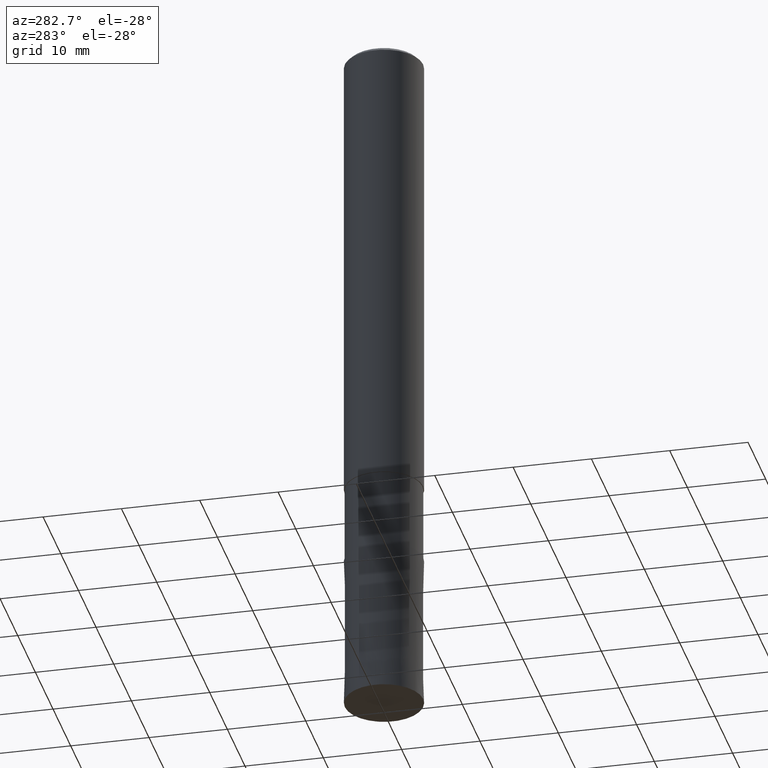
[diagram: clean part render]
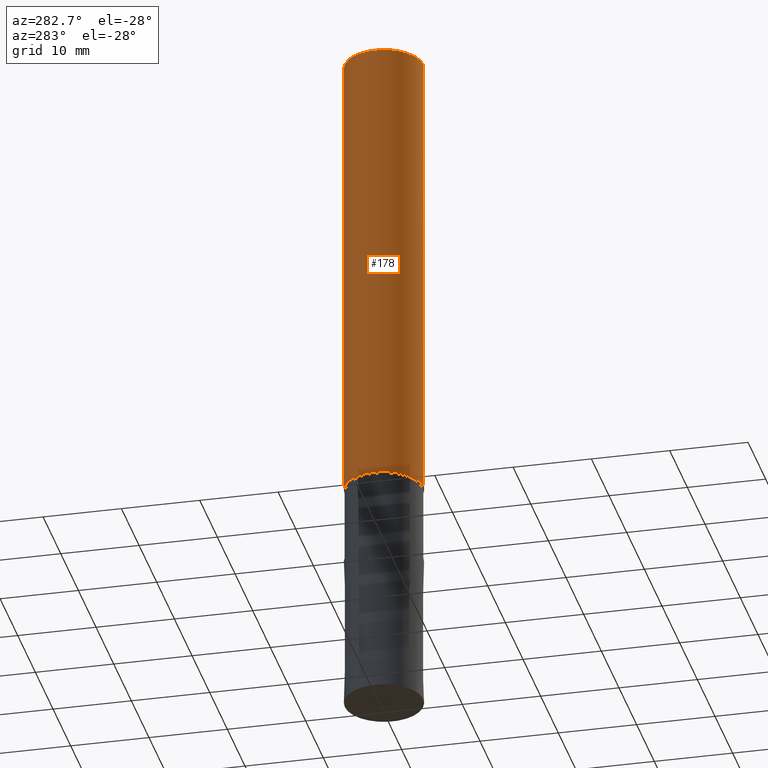
[diagram: same view with one face highlighted and labeled with its STEP entity id]
A machine part, auxiliary view. The second image highlights one B-rep face of the part: STEP entity #178.
In plain terms, the highlighted cylindrical surface (partial cylindrical patch) has radius 5 mm, axis along (-0, -0, 1).
Its self-contained STEP definition (entity closure, byte-faithful):
#92=VERTEX_POINT('',#213);
#100=VERTEX_POINT('',#222);
#106=VERTEX_POINT('',#228);
#116=EDGE_CURVE('',#130,#100,#239,.T.);
#130=VERTEX_POINT('',#254);
#160=EDGE_CURVE('',#130,#92,#292,.T.);
#162=EDGE_CURVE('',#106,#100,#294,.T.);
#174=EDGE_CURVE('',#92,#106,#308,.T.);
#178=ADVANCED_FACE('',(#312),#313,.T.);
#213=CARTESIAN_POINT('',(6.12303176911189E-016,-5.0,-0.5));
#222=CARTESIAN_POINT('',(0.0,5.0,-60.0));
#228=CARTESIAN_POINT('',(0.0,5.0,-0.5));
#239=CIRCLE('',#373,5.0);
#254=CARTESIAN_POINT('',(6.12303176911189E-016,-5.0,-60.0));
#292=LINE('',#438,#439);
#294=LINE('',#442,#443);
#308=CIRCLE('',#459,5.0);
#312=FACE_OUTER_BOUND('',#463,.T.);
#313=CYLINDRICAL_SURFACE('',#464,5.0);
#373=AXIS2_PLACEMENT_3D('',#503,#504,#505);
#438=CARTESIAN_POINT('',(6.12303176911189E-016,-5.0,-30.25));
#439=VECTOR('',#583,1.0);
#442=CARTESIAN_POINT('',(-6.12303176911189E-016,5.0,-30.25));
#443=VECTOR('',#584,1.0);
#459=AXIS2_PLACEMENT_3D('',#606,#607,#608);
#463=EDGE_LOOP('',(#610,#611,#612,#613));
#464=AXIS2_PLACEMENT_3D('',#614,#615,#616);
#503=CARTESIAN_POINT('',(0.0,0.0,-60.0));
#504=DIRECTION('',(0.0,0.0,-1.0));
#505=DIRECTION('',(0.0,1.0,0.0));
#583=DIRECTION('',(-0.0,-0.0,1.0));
#584=DIRECTION('',(0.0,0.0,-1.0));
#606=CARTESIAN_POINT('',(0.0,0.0,-0.5));
#607=DIRECTION('',(0.0,0.0,-1.0));
#608=DIRECTION('',(0.0,1.0,0.0));
#610=ORIENTED_EDGE('',*,*,#162,.T.);
#611=ORIENTED_EDGE('',*,*,#116,.F.);
#612=ORIENTED_EDGE('',*,*,#160,.T.);
#613=ORIENTED_EDGE('',*,*,#174,.T.);
#614=CARTESIAN_POINT('',(0.0,0.0,-30.25));
#615=DIRECTION('',(-0.0,-0.0,1.0));
#616=DIRECTION('',(0.0,1.0,0.0));